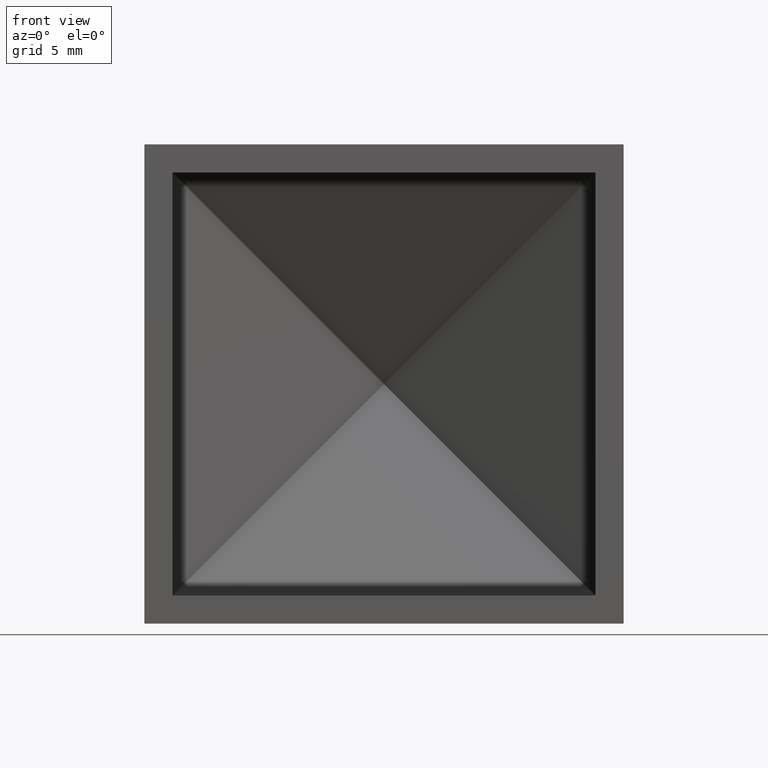
[diagram: clean part render]
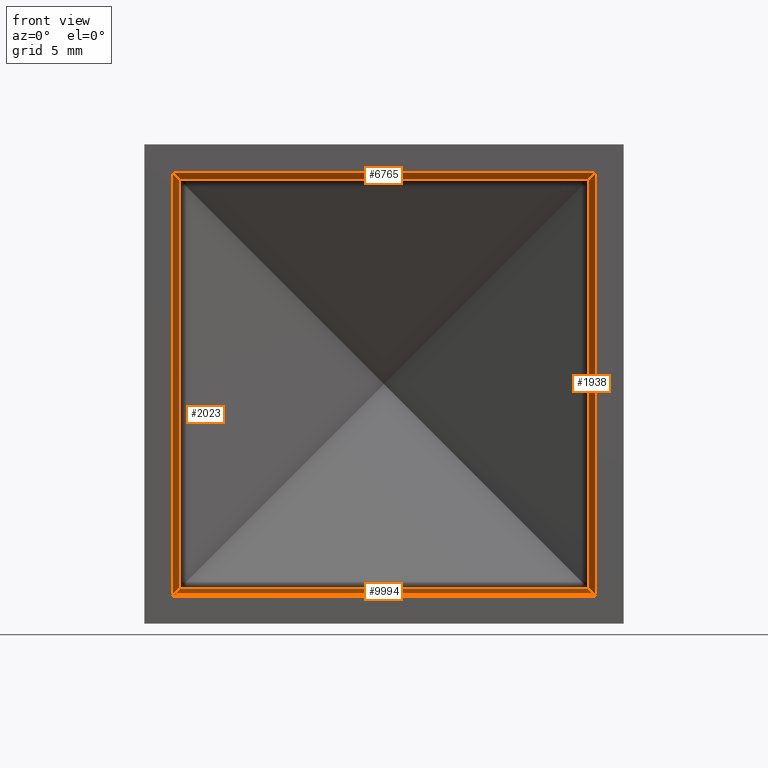
[diagram: same view with one multi-face feature highlighted, each face labeled with its STEP entity id]
A machine part, front view. The highlighted faces form ONE feature: a constant-radius fillet chain: 4 tangent blend faces with common blend radius 1 mm. The faces share edges in the B-rep.
Their STEP definitions:
[1] entity #9994 (Cylinder):
#676 = CARTESIAN_POINT ( 'NONE',  ( -14.81227717464614102, 8.932492169828289974, -14.81227717464613747 ) ) ;
#1046 = LINE ( 'NONE', #2159, #2979 ) ;
#1111 = DIRECTION ( 'NONE',  ( 1.000000000000000000, -0.000000000000000000, -4.440892098500625176E-16 ) ) ;
#1523 = CARTESIAN_POINT ( 'NONE',  ( 15.00000000000000711, 8.241140577790011079, -15.00000000000000000 ) ) ;
#1752 =( BOUNDED_CURVE ( )  B_SPLINE_CURVE ( 3, ( #7665, #4384, #676, #8543 ),
 .UNSPECIFIED., .F., .F. ) 
 B_SPLINE_CURVE_WITH_KNOTS ( ( 4, 4 ),
 ( 3.141592653589794892, 4.202142645814479494 ),
 .UNSPECIFIED. ) 
 CURVE ( )  GEOMETRIC_REPRESENTATION_ITEM ( )  RATIONAL_B_SPLINE_CURVE ( ( 1.000000000000000000, 0.9084453454593683919, 0.9084453454593683919, 1.000000000000000000 ) ) 
 REPRESENTATION_ITEM ( '' )  );
#2159 = CARTESIAN_POINT ( 'NONE',  ( -17.00000000000002132, 9.113764804025294097, -14.48839221921243592 ) ) ;
#2749 = CARTESIAN_POINT ( 'NONE',  ( 15.00000000000000711, 8.241140577790011079, -15.00000000000000000 ) ) ;
#2767 = CYLINDRICAL_SURFACE ( 'NONE', #4004, 0.9999999999999974465 ) ;
#2925 = VERTEX_POINT ( 'NONE', #4598 ) ;
#2979 = VECTOR ( 'NONE', #8932, 1000.000000000000000 ) ;
#3069 = DIRECTION ( 'NONE',  ( 1.000000000000000000, 0.000000000000000000, -0.000000000000000000 ) ) ;
#3401 = CARTESIAN_POINT ( 'NONE',  ( -15.00000000000000000, 8.241140577790011079, -14.99999999999999289 ) ) ;
#3432 = CARTESIAN_POINT ( 'NONE',  ( 14.48839221921245723, 9.113764804025292321, -14.48839221921244480 ) ) ;
#3556 = CARTESIAN_POINT ( 'NONE',  ( -14.48839221921243947, 9.113764804025290545, -14.48839221921243947 ) ) ;
#3788 = EDGE_CURVE ( 'NONE', #5982, #9766, #4676, .T. ) ;
#3947 = EDGE_CURVE ( 'NONE', #9714, #2925, #1046, .T. ) ;
#4004 = AXIS2_PLACEMENT_3D ( 'NONE', #9736, #1111, #10833 ) ;
#4384 = CARTESIAN_POINT ( 'NONE',  ( -14.99999999999998934, 8.612302580512551486, -14.99999999999998224 ) ) ;
#4598 = CARTESIAN_POINT ( 'NONE',  ( 14.48839221921245723, 9.113764804025292321, -14.48839221921244480 ) ) ;
#4676 = LINE ( 'NONE', #8774, #10554 ) ;
#5798 = EDGE_CURVE ( 'NONE', #5982, #9714, #1752, .T. ) ;
#5892 = ORIENTED_EDGE ( 'NONE', *, *, #3788, .T. ) ;
#5982 = VERTEX_POINT ( 'NONE', #3401 ) ;
#7082 =( BOUNDED_CURVE ( )  B_SPLINE_CURVE ( 3, ( #3432, #9286, #9374, #1523 ),
 .UNSPECIFIED., .F., .T. ) 
 B_SPLINE_CURVE_WITH_KNOTS ( ( 4, 4 ),
 ( 2.081042661365104962, 3.141592653589791340 ),
 .UNSPECIFIED. ) 
 CURVE ( )  GEOMETRIC_REPRESENTATION_ITEM ( )  RATIONAL_B_SPLINE_CURVE ( ( 1.000000000000000000, 0.9084453454593681698, 0.9084453454593681698, 1.000000000000000000 ) ) 
 REPRESENTATION_ITEM ( '' )  );
#7144 = EDGE_CURVE ( 'NONE', #2925, #9766, #7082, .T. ) ;
#7665 = CARTESIAN_POINT ( 'NONE',  ( -15.00000000000000000, 8.241140577790011079, -14.99999999999999289 ) ) ;
#8543 = CARTESIAN_POINT ( 'NONE',  ( -14.48839221921243947, 9.113764804025290545, -14.48839221921243947 ) ) ;
#8714 = ORIENTED_EDGE ( 'NONE', *, *, #5798, .F. ) ;
#8774 = CARTESIAN_POINT ( 'NONE',  ( -17.00000000000000711, 8.241140577790011079, -15.00000000000000178 ) ) ;
#8932 = DIRECTION ( 'NONE',  ( 1.000000000000000000, -0.000000000000000000, -4.440892098500625176E-16 ) ) ;
#9098 = EDGE_LOOP ( 'NONE', ( #8714, #5892, #11362, #12342 ) ) ;
#9286 = CARTESIAN_POINT ( 'NONE',  ( 14.81227717464615701, 8.932492169828291750, -14.81227717464615168 ) ) ;
#9374 = CARTESIAN_POINT ( 'NONE',  ( 15.00000000000000533, 8.612302580512555039, -14.99999999999999822 ) ) ;
#9714 = VERTEX_POINT ( 'NONE', #3556 ) ;
#9736 = CARTESIAN_POINT ( 'NONE',  ( -17.00000000000002132, 8.241140577790009303, -13.99999999999998401 ) ) ;
#9766 = VERTEX_POINT ( 'NONE', #2749 ) ;
#9994 = ADVANCED_FACE ( 'NONE', ( #11974 ), #2767, .F. ) ;
#10554 = VECTOR ( 'NONE', #3069, 1000.000000000000000 ) ;
#10833 = DIRECTION ( 'NONE',  ( 0.000000000000000000, 0.000000000000000000, -1.000000000000000000 ) ) ;
#11362 = ORIENTED_EDGE ( 'NONE', *, *, #7144, .F. ) ;
#11974 = FACE_OUTER_BOUND ( 'NONE', #9098, .T. ) ;
#12342 = ORIENTED_EDGE ( 'NONE', *, *, #3947, .F. ) ;
[2] entity #1938 (Cylinder):
#256 = CARTESIAN_POINT ( 'NONE',  ( 14.48839221921246079, 9.113764804025290545, 14.48839221921245013 ) ) ;
#726 = CARTESIAN_POINT ( 'NONE',  ( 15.00000000000000888, 8.241140577790011079, -17.00000000000000000 ) ) ;
#772 = DIRECTION ( 'NONE',  ( 0.000000000000000000, 0.000000000000000000, 1.000000000000000000 ) ) ;
#1523 = CARTESIAN_POINT ( 'NONE',  ( 15.00000000000000711, 8.241140577790011079, -15.00000000000000000 ) ) ;
#1702 = VERTEX_POINT ( 'NONE', #3815 ) ;
#1708 = CARTESIAN_POINT ( 'NONE',  ( 14.00000000000000533, 8.241140577790009303, -17.00000000000000000 ) ) ;
#1938 = ADVANCED_FACE ( 'NONE', ( #3907 ), #10221, .F. ) ;
#2190 = CARTESIAN_POINT ( 'NONE',  ( 14.81227717464616056, 8.932492169828289974, 14.81227717464614990 ) ) ;
#2749 = CARTESIAN_POINT ( 'NONE',  ( 15.00000000000000711, 8.241140577790011079, -15.00000000000000000 ) ) ;
#2925 = VERTEX_POINT ( 'NONE', #4598 ) ;
#2984 = EDGE_CURVE ( 'NONE', #9766, #1702, #4246, .T. ) ;
#3063 = ORIENTED_EDGE ( 'NONE', *, *, #7144, .T. ) ;
#3432 = CARTESIAN_POINT ( 'NONE',  ( 14.48839221921245723, 9.113764804025292321, -14.48839221921244480 ) ) ;
#3630 = DIRECTION ( 'NONE',  ( 1.000000000000000000, 0.000000000000000000, 0.000000000000000000 ) ) ;
#3726 = AXIS2_PLACEMENT_3D ( 'NONE', #1708, #11311, #3630 ) ;
#3815 = CARTESIAN_POINT ( 'NONE',  ( 15.00000000000000711, 8.241140577790011079, 14.99999999999999645 ) ) ;
#3907 = FACE_OUTER_BOUND ( 'NONE', #8247, .T. ) ;
#4246 = LINE ( 'NONE', #726, #8781 ) ;
#4447 = LINE ( 'NONE', #8366, #9898 ) ;
#4598 = CARTESIAN_POINT ( 'NONE',  ( 14.48839221921245723, 9.113764804025292321, -14.48839221921244480 ) ) ;
#5440 = DIRECTION ( 'NONE',  ( -0.000000000000000000, -0.000000000000000000, 1.000000000000000000 ) ) ;
#6407 = CARTESIAN_POINT ( 'NONE',  ( 14.48839221921246079, 9.113764804025290545, 14.48839221921245013 ) ) ;
#6700 = VERTEX_POINT ( 'NONE', #6407 ) ;
#7082 =( BOUNDED_CURVE ( )  B_SPLINE_CURVE ( 3, ( #3432, #9286, #9374, #1523 ),
 .UNSPECIFIED., .F., .T. ) 
 B_SPLINE_CURVE_WITH_KNOTS ( ( 4, 4 ),
 ( 2.081042661365104962, 3.141592653589791340 ),
 .UNSPECIFIED. ) 
 CURVE ( )  GEOMETRIC_REPRESENTATION_ITEM ( )  RATIONAL_B_SPLINE_CURVE ( ( 1.000000000000000000, 0.9084453454593681698, 0.9084453454593681698, 1.000000000000000000 ) ) 
 REPRESENTATION_ITEM ( '' )  );
#7144 = EDGE_CURVE ( 'NONE', #2925, #9766, #7082, .T. ) ;
#7999 = ORIENTED_EDGE ( 'NONE', *, *, #10178, .F. ) ;
#8247 = EDGE_LOOP ( 'NONE', ( #3063, #10535, #12469, #7999 ) ) ;
#8366 = CARTESIAN_POINT ( 'NONE',  ( 14.48839221921245723, 9.113764804025294097, -17.00000000000000000 ) ) ;
#8781 = VECTOR ( 'NONE', #772, 1000.000000000000000 ) ;
#9286 = CARTESIAN_POINT ( 'NONE',  ( 14.81227717464615701, 8.932492169828291750, -14.81227717464615168 ) ) ;
#9374 = CARTESIAN_POINT ( 'NONE',  ( 15.00000000000000533, 8.612302580512555039, -14.99999999999999822 ) ) ;
#9766 = VERTEX_POINT ( 'NONE', #2749 ) ;
#9898 = VECTOR ( 'NONE', #5440, 1000.000000000000000 ) ;
#9976 = EDGE_CURVE ( 'NONE', #1702, #6700, #11147, .T. ) ;
#10178 = EDGE_CURVE ( 'NONE', #2925, #6700, #4447, .T. ) ;
#10221 = CYLINDRICAL_SURFACE ( 'NONE', #3726, 0.9999999999999974465 ) ;
#10535 = ORIENTED_EDGE ( 'NONE', *, *, #2984, .T. ) ;
#11147 =( BOUNDED_CURVE ( )  B_SPLINE_CURVE ( 3, ( #11743, #11656, #2190, #256 ),
 .UNSPECIFIED., .F., .F. ) 
 B_SPLINE_CURVE_WITH_KNOTS ( ( 4, 4 ),
 ( 1.734723475976808080E-15, 1.060549992224684379 ),
 .UNSPECIFIED. ) 
 CURVE ( )  GEOMETRIC_REPRESENTATION_ITEM ( )  RATIONAL_B_SPLINE_CURVE ( ( 1.000000000000000000, 0.9084453454593687249, 0.9084453454593687249, 1.000000000000000000 ) ) 
 REPRESENTATION_ITEM ( '' )  );
#11311 = DIRECTION ( 'NONE',  ( -0.000000000000000000, -0.000000000000000000, 1.000000000000000000 ) ) ;
#11656 = CARTESIAN_POINT ( 'NONE',  ( 15.00000000000000533, 8.612302580512555039, 14.99999999999999645 ) ) ;
#11743 = CARTESIAN_POINT ( 'NONE',  ( 15.00000000000000711, 8.241140577790011079, 14.99999999999999645 ) ) ;
#12469 = ORIENTED_EDGE ( 'NONE', *, *, #9976, .T. ) ;
[3] entity #6765 (Cylinder):
#152 = CARTESIAN_POINT ( 'NONE',  ( -17.00000000000001776, 9.113764804025290545, 14.48839221921245901 ) ) ;
#256 = CARTESIAN_POINT ( 'NONE',  ( 14.48839221921246079, 9.113764804025290545, 14.48839221921245013 ) ) ;
#1007 = DIRECTION ( 'NONE',  ( 1.000000000000000000, -1.892632194920205684E-16, -1.059272490998641920E-16 ) ) ;
#1346 = EDGE_CURVE ( 'NONE', #4785, #2696, #9313, .T. ) ;
#1591 = CYLINDRICAL_SURFACE ( 'NONE', #2756, 0.9999999999999974465 ) ;
#1702 = VERTEX_POINT ( 'NONE', #3815 ) ;
#1941 = CARTESIAN_POINT ( 'NONE',  ( -14.99999999999998934, 8.612302580512555039, 15.00000000000001243 ) ) ;
#2183 = CARTESIAN_POINT ( 'NONE',  ( -14.48839221921244302, 9.113764804025292321, 14.48839221921246079 ) ) ;
#2190 = CARTESIAN_POINT ( 'NONE',  ( 14.81227717464616056, 8.932492169828289974, 14.81227717464614990 ) ) ;
#2611 = EDGE_CURVE ( 'NONE', #2696, #1702, #8196, .T. ) ;
#2657 = ORIENTED_EDGE ( 'NONE', *, *, #2611, .F. ) ;
#2696 = VERTEX_POINT ( 'NONE', #3277 ) ;
#2756 = AXIS2_PLACEMENT_3D ( 'NONE', #6569, #6694, #4739 ) ;
#3277 = CARTESIAN_POINT ( 'NONE',  ( -14.99999999999999289, 8.241140577790011079, 15.00000000000000711 ) ) ;
#3815 = CARTESIAN_POINT ( 'NONE',  ( 15.00000000000000711, 8.241140577790011079, 14.99999999999999645 ) ) ;
#3921 = CARTESIAN_POINT ( 'NONE',  ( -14.99999999999999289, 8.241140577790011079, 15.00000000000000711 ) ) ;
#4026 = EDGE_LOOP ( 'NONE', ( #11397, #8595, #11972, #2657 ) ) ;
#4739 = DIRECTION ( 'NONE',  ( 0.000000000000000000, 0.000000000000000000, -1.000000000000000000 ) ) ;
#4785 = VERTEX_POINT ( 'NONE', #2183 ) ;
#5106 = VECTOR ( 'NONE', #1007, 1000.000000000000000 ) ;
#5124 = FACE_OUTER_BOUND ( 'NONE', #4026, .T. ) ;
#5607 = VECTOR ( 'NONE', #10901, 1000.000000000000000 ) ;
#5833 = CARTESIAN_POINT ( 'NONE',  ( -14.81227717464614102, 8.932492169828291750, 14.81227717464616056 ) ) ;
#6407 = CARTESIAN_POINT ( 'NONE',  ( 14.48839221921246079, 9.113764804025290545, 14.48839221921245013 ) ) ;
#6569 = CARTESIAN_POINT ( 'NONE',  ( -17.00000000000001421, 8.241140577790009303, 14.00000000000001243 ) ) ;
#6694 = DIRECTION ( 'NONE',  ( 1.000000000000000000, -0.000000000000000000, -4.440892098500625176E-16 ) ) ;
#6700 = VERTEX_POINT ( 'NONE', #6407 ) ;
#6765 = ADVANCED_FACE ( 'NONE', ( #5124 ), #1591, .F. ) ;
#7132 = CARTESIAN_POINT ( 'NONE',  ( -17.00000000000001421, 8.241140577790009303, 15.00000000000001066 ) ) ;
#7224 = EDGE_CURVE ( 'NONE', #4785, #6700, #9933, .T. ) ;
#7934 = CARTESIAN_POINT ( 'NONE',  ( -14.48839221921244302, 9.113764804025292321, 14.48839221921246079 ) ) ;
#8196 = LINE ( 'NONE', #7132, #5607 ) ;
#8595 = ORIENTED_EDGE ( 'NONE', *, *, #7224, .T. ) ;
#9313 =( BOUNDED_CURVE ( )  B_SPLINE_CURVE ( 3, ( #7934, #5833, #1941, #3921 ),
 .UNSPECIFIED., .F., .F. ) 
 B_SPLINE_CURVE_WITH_KNOTS ( ( 4, 4 ),
 ( 5.222635314954898078, 6.283185307179584456 ),
 .UNSPECIFIED. ) 
 CURVE ( )  GEOMETRIC_REPRESENTATION_ITEM ( )  RATIONAL_B_SPLINE_CURVE ( ( 1.000000000000000000, 0.9084453454593678368, 0.9084453454593678368, 1.000000000000000000 ) ) 
 REPRESENTATION_ITEM ( '' )  );
#9933 = LINE ( 'NONE', #152, #5106 ) ;
#9976 = EDGE_CURVE ( 'NONE', #1702, #6700, #11147, .T. ) ;
#10901 = DIRECTION ( 'NONE',  ( 1.000000000000000000, -0.000000000000000000, -4.440892098500625176E-16 ) ) ;
#11147 =( BOUNDED_CURVE ( )  B_SPLINE_CURVE ( 3, ( #11743, #11656, #2190, #256 ),
 .UNSPECIFIED., .F., .F. ) 
 B_SPLINE_CURVE_WITH_KNOTS ( ( 4, 4 ),
 ( 1.734723475976808080E-15, 1.060549992224684379 ),
 .UNSPECIFIED. ) 
 CURVE ( )  GEOMETRIC_REPRESENTATION_ITEM ( )  RATIONAL_B_SPLINE_CURVE ( ( 1.000000000000000000, 0.9084453454593687249, 0.9084453454593687249, 1.000000000000000000 ) ) 
 REPRESENTATION_ITEM ( '' )  );
#11397 = ORIENTED_EDGE ( 'NONE', *, *, #1346, .F. ) ;
#11656 = CARTESIAN_POINT ( 'NONE',  ( 15.00000000000000533, 8.612302580512555039, 14.99999999999999645 ) ) ;
#11743 = CARTESIAN_POINT ( 'NONE',  ( 15.00000000000000711, 8.241140577790011079, 14.99999999999999645 ) ) ;
#11972 = ORIENTED_EDGE ( 'NONE', *, *, #9976, .F. ) ;
[4] entity #2023 (Cylinder):
#676 = CARTESIAN_POINT ( 'NONE',  ( -14.81227717464614102, 8.932492169828289974, -14.81227717464613747 ) ) ;
#1346 = EDGE_CURVE ( 'NONE', #4785, #2696, #9313, .T. ) ;
#1385 = ORIENTED_EDGE ( 'NONE', *, *, #4698, .T. ) ;
#1752 =( BOUNDED_CURVE ( )  B_SPLINE_CURVE ( 3, ( #7665, #4384, #676, #8543 ),
 .UNSPECIFIED., .F., .F. ) 
 B_SPLINE_CURVE_WITH_KNOTS ( ( 4, 4 ),
 ( 3.141592653589794892, 4.202142645814479494 ),
 .UNSPECIFIED. ) 
 CURVE ( )  GEOMETRIC_REPRESENTATION_ITEM ( )  RATIONAL_B_SPLINE_CURVE ( ( 1.000000000000000000, 0.9084453454593683919, 0.9084453454593683919, 1.000000000000000000 ) ) 
 REPRESENTATION_ITEM ( '' )  );
#1941 = CARTESIAN_POINT ( 'NONE',  ( -14.99999999999998934, 8.612302580512555039, 15.00000000000001243 ) ) ;
#2023 = ADVANCED_FACE ( 'NONE', ( #9525 ), #2694, .F. ) ;
#2183 = CARTESIAN_POINT ( 'NONE',  ( -14.48839221921244302, 9.113764804025292321, 14.48839221921246079 ) ) ;
#2318 = ORIENTED_EDGE ( 'NONE', *, *, #8915, .F. ) ;
#2694 = CYLINDRICAL_SURFACE ( 'NONE', #6925, 0.9999999999999974465 ) ;
#2696 = VERTEX_POINT ( 'NONE', #3277 ) ;
#3277 = CARTESIAN_POINT ( 'NONE',  ( -14.99999999999999289, 8.241140577790011079, 15.00000000000000711 ) ) ;
#3401 = CARTESIAN_POINT ( 'NONE',  ( -15.00000000000000000, 8.241140577790011079, -14.99999999999999289 ) ) ;
#3556 = CARTESIAN_POINT ( 'NONE',  ( -14.48839221921243947, 9.113764804025290545, -14.48839221921243947 ) ) ;
#3765 = DIRECTION ( 'NONE',  ( -0.000000000000000000, 0.000000000000000000, 1.000000000000000000 ) ) ;
#3921 = CARTESIAN_POINT ( 'NONE',  ( -14.99999999999999289, 8.241140577790011079, 15.00000000000000711 ) ) ;
#4384 = CARTESIAN_POINT ( 'NONE',  ( -14.99999999999998934, 8.612302580512551486, -14.99999999999998224 ) ) ;
#4698 = EDGE_CURVE ( 'NONE', #9714, #4785, #8632, .T. ) ;
#4785 = VERTEX_POINT ( 'NONE', #2183 ) ;
#5387 = VECTOR ( 'NONE', #8726, 1000.000000000000000 ) ;
#5798 = EDGE_CURVE ( 'NONE', #5982, #9714, #1752, .T. ) ;
#5833 = CARTESIAN_POINT ( 'NONE',  ( -14.81227717464614102, 8.932492169828291750, 14.81227717464616056 ) ) ;
#5982 = VERTEX_POINT ( 'NONE', #3401 ) ;
#6451 = ORIENTED_EDGE ( 'NONE', *, *, #1346, .T. ) ;
#6507 = ORIENTED_EDGE ( 'NONE', *, *, #5798, .T. ) ;
#6790 = DIRECTION ( 'NONE',  ( -0.000000000000000000, -0.000000000000000000, 1.000000000000000000 ) ) ;
#6797 = CARTESIAN_POINT ( 'NONE',  ( -14.48839221921243769, 9.113764804025290545, -17.00000000000000000 ) ) ;
#6925 = AXIS2_PLACEMENT_3D ( 'NONE', #11556, #6790, #8905 ) ;
#7665 = CARTESIAN_POINT ( 'NONE',  ( -15.00000000000000000, 8.241140577790011079, -14.99999999999999289 ) ) ;
#7934 = CARTESIAN_POINT ( 'NONE',  ( -14.48839221921244302, 9.113764804025292321, 14.48839221921246079 ) ) ;
#8543 = CARTESIAN_POINT ( 'NONE',  ( -14.48839221921243947, 9.113764804025290545, -14.48839221921243947 ) ) ;
#8632 = LINE ( 'NONE', #6797, #9073 ) ;
#8726 = DIRECTION ( 'NONE',  ( -0.000000000000000000, -0.000000000000000000, 1.000000000000000000 ) ) ;
#8905 = DIRECTION ( 'NONE',  ( 1.000000000000000000, 0.000000000000000000, 0.000000000000000000 ) ) ;
#8915 = EDGE_CURVE ( 'NONE', #5982, #2696, #10808, .T. ) ;
#9073 = VECTOR ( 'NONE', #3765, 1000.000000000000000 ) ;
#9313 =( BOUNDED_CURVE ( )  B_SPLINE_CURVE ( 3, ( #7934, #5833, #1941, #3921 ),
 .UNSPECIFIED., .F., .F. ) 
 B_SPLINE_CURVE_WITH_KNOTS ( ( 4, 4 ),
 ( 5.222635314954898078, 6.283185307179584456 ),
 .UNSPECIFIED. ) 
 CURVE ( )  GEOMETRIC_REPRESENTATION_ITEM ( )  RATIONAL_B_SPLINE_CURVE ( ( 1.000000000000000000, 0.9084453454593678368, 0.9084453454593678368, 1.000000000000000000 ) ) 
 REPRESENTATION_ITEM ( '' )  );
#9525 = FACE_OUTER_BOUND ( 'NONE', #12532, .T. ) ;
#9714 = VERTEX_POINT ( 'NONE', #3556 ) ;
#10808 = LINE ( 'NONE', #11634, #5387 ) ;
#11556 = CARTESIAN_POINT ( 'NONE',  ( -13.99999999999999112, 8.241140577790009303, -17.00000000000000000 ) ) ;
#11634 = CARTESIAN_POINT ( 'NONE',  ( -14.99999999999998934, 8.241140577790009303, -17.00000000000000000 ) ) ;
#12532 = EDGE_LOOP ( 'NONE', ( #6507, #1385, #6451, #2318 ) ) ;